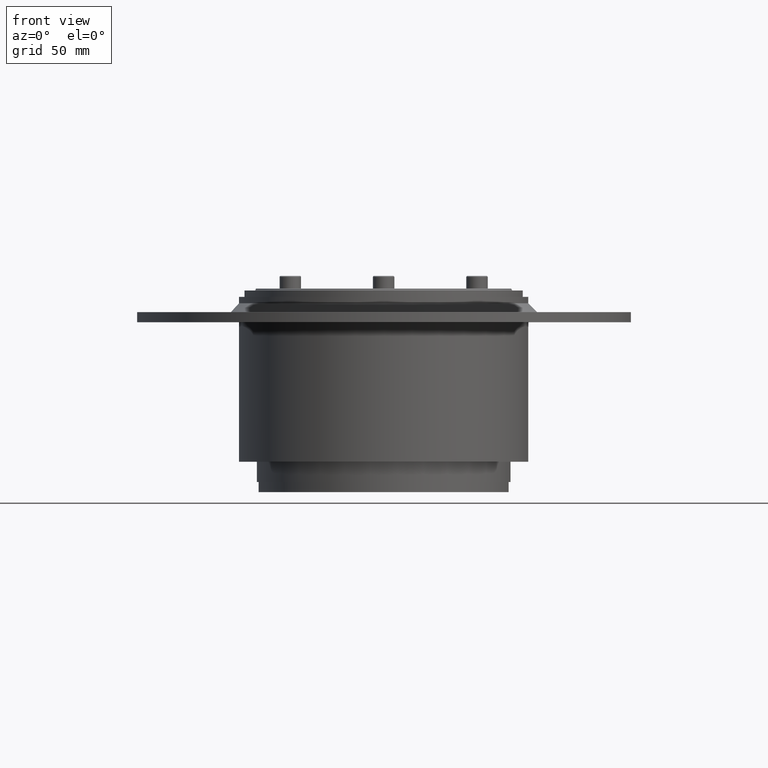
[diagram: clean part render]
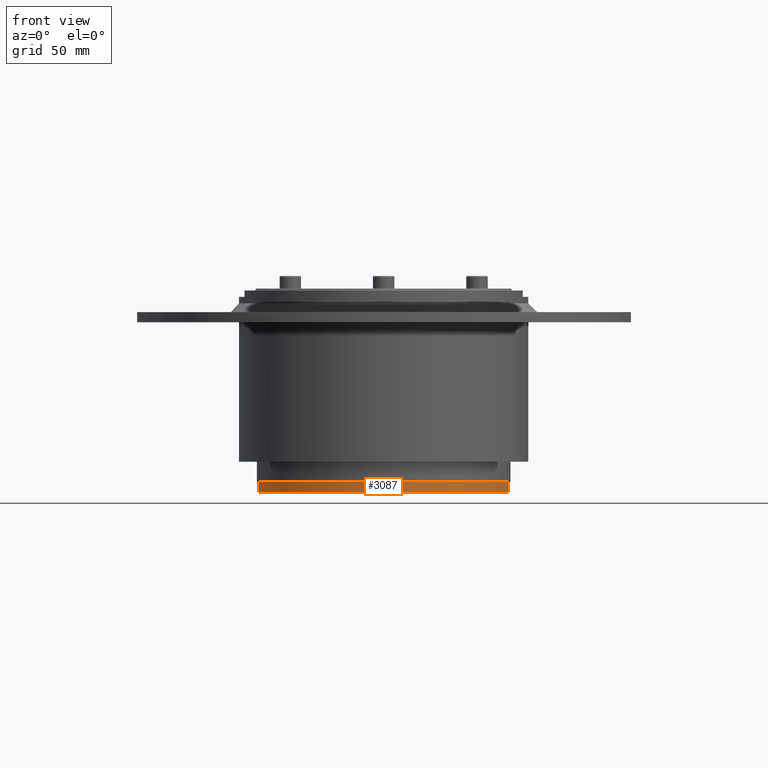
[diagram: same view with one face highlighted and labeled with its STEP entity id]
A machine part, front view. The second image highlights one B-rep face of the part: STEP entity #3087.
In plain terms, the highlighted cylindrical surface (partial cylindrical patch) has radius 49.5 mm, axis along (0, -0, 1).
Its self-contained STEP definition (entity closure, byte-faithful):
#3020=CARTESIAN_POINT('',(1.86562180241534,4.986334630848539,0.0));
#3021=VERTEX_POINT('',#3020);
#3037=CARTESIAN_POINT('',(1.86562180241534,4.986334630848539,4.0));
#3038=VERTEX_POINT('',#3037);
#3046=CARTESIAN_POINT('',(1.86562180241534,4.986334630848539,0.0));
#3047=DIRECTION('',(0.0,0.0,1.0));
#3048=VECTOR('',#3047,4.0);
#3049=LINE('',#3046,#3048);
#3050=EDGE_CURVE('',#3021,#3038,#3049,.T.);
#3055=CARTESIAN_POINT('',(51.133286751886516,0.196012050202029,0.0));
#3056=DIRECTION('',(0.0,0.0,1.0));
#3057=DIRECTION('',(-0.995306362615582,-0.096774193548385,0.0));
#3058=AXIS2_PLACEMENT_3D('',#3055,#3056,#3057);
#3059=CYLINDRICAL_SURFACE('',#3058,49.500000000000021);
#3060=CARTESIAN_POINT('',(100.40095170135785,4.986334630847095,0.0));
#3061=VERTEX_POINT('',#3060);
#3062=CARTESIAN_POINT('',(51.133286751886516,0.196012050202029,0.0));
#3063=DIRECTION('',(0.0,0.0,-1.0));
#3064=DIRECTION('',(-0.995306362615582,-0.096774193548385,0.0));
#3065=AXIS2_PLACEMENT_3D('',#3062,#3063,#3064);
#3066=CIRCLE('',#3065,49.500000000000014);
#3067=EDGE_CURVE('',#3021,#3061,#3066,.T.);
#3068=ORIENTED_EDGE('',*,*,#3067,.F.);
#3069=ORIENTED_EDGE('',*,*,#3050,.T.);
#3070=CARTESIAN_POINT('',(100.40095170135785,4.986334630847096,4.0));
#3071=VERTEX_POINT('',#3070);
#3072=CARTESIAN_POINT('',(51.133286751886516,0.196012050202029,4.0));
#3073=DIRECTION('',(0.0,0.0,1.0));
#3074=DIRECTION('',(-0.995306362615582,-0.096774193548385,0.0));
#3075=AXIS2_PLACEMENT_3D('',#3072,#3073,#3074);
#3076=CIRCLE('',#3075,49.500000000000014);
#3077=EDGE_CURVE('',#3071,#3038,#3076,.T.);
#3078=ORIENTED_EDGE('',*,*,#3077,.F.);
#3079=CARTESIAN_POINT('',(100.40095170135785,4.986334630847095,0.0));
#3080=DIRECTION('',(0.0,0.0,1.0));
#3081=VECTOR('',#3080,4.0);
#3082=LINE('',#3079,#3081);
#3083=EDGE_CURVE('',#3061,#3071,#3082,.T.);
#3084=ORIENTED_EDGE('',*,*,#3083,.F.);
#3085=EDGE_LOOP('',(#3068,#3069,#3078,#3084));
#3086=FACE_OUTER_BOUND('',#3085,.T.);
#3087=ADVANCED_FACE('',(#3086),#3059,.T.);